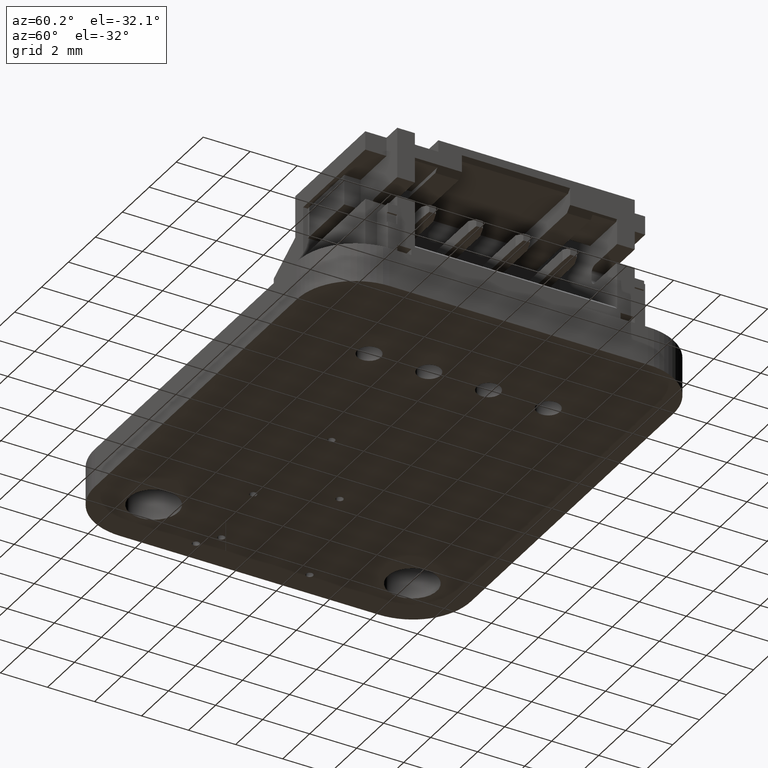
[diagram: clean part render]
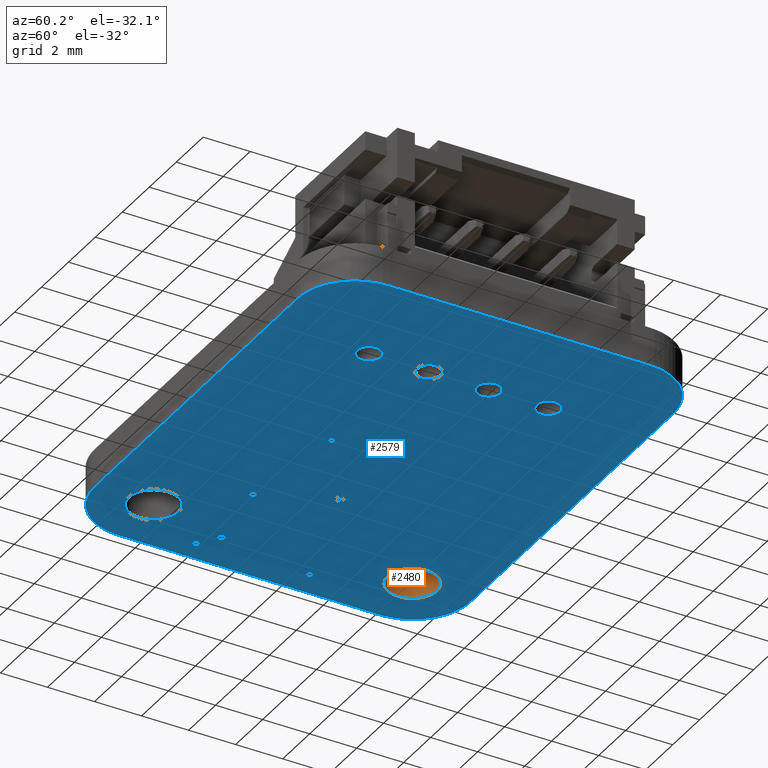
[diagram: same view with the hole feature highlighted: cylindrical wall and planar end face, labeled with their STEP entity ids]
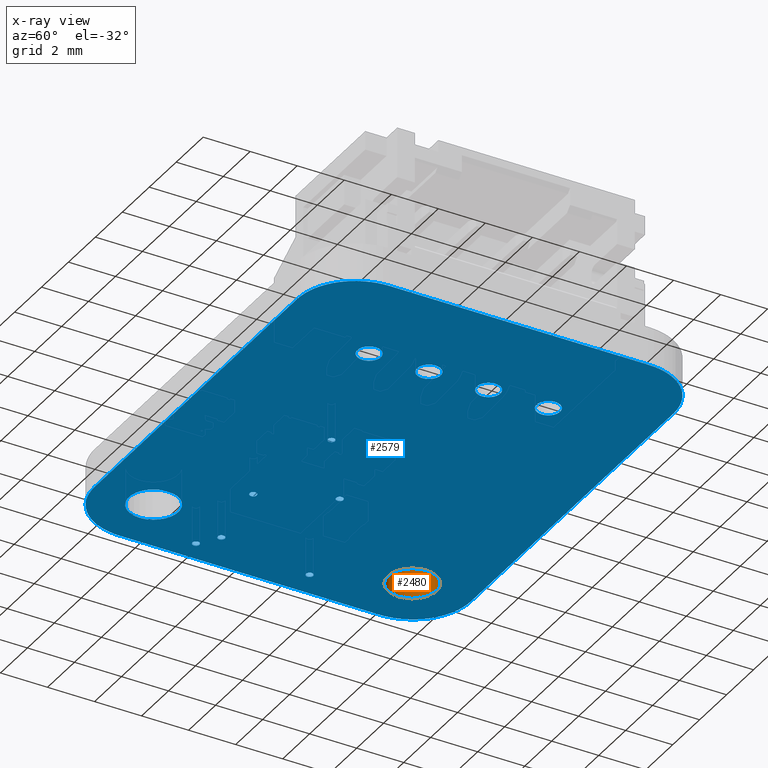
[diagram: x-ray of the same camera — body ghosted, the hole faces saturated]
A machine part, auxiliary view. The highlighted faces form one hole feature of diameter 2.1 mm: the cylindrical wall (entity #2480, orange) and its adjacent planar end face (entity #2579, blue) — they share a circular edge in the B-rep.
The next image is the same camera in x-ray (body ghosted, the hole faces saturated) — the bore reads through the body.
Wall:
#2480 = ADVANCED_FACE('',(#2481),#2508,.F.);
#2481 = FACE_BOUND('',#2482,.T.);
#2482 = EDGE_LOOP('',(#2483,#2493,#2500,#2501));
#2483 = ORIENTED_EDGE('',*,*,#2484,.T.);
#2484 = EDGE_CURVE('',#2485,#2487,#2489,.T.);
#2485 = VERTEX_POINT('',#2486);
#2486 = CARTESIAN_POINT('',(3.55,-2.5,-0.82));
#2487 = VERTEX_POINT('',#2488);
#2488 = CARTESIAN_POINT('',(3.55,-2.5,0.82));
#2489 = LINE('',#2490,#2491);
#2490 = CARTESIAN_POINT('',(3.55,-2.5,-0.82));
#2491 = VECTOR('',#2492,1.);
#2492 = DIRECTION('',(0.,0.,1.));
#2493 = ORIENTED_EDGE('',*,*,#2494,.T.);
#2494 = EDGE_CURVE('',#2487,#2487,#2495,.T.);
#2495 = CIRCLE('',#2496,1.05);
#2496 = AXIS2_PLACEMENT_3D('',#2497,#2498,#2499);
#2497 = CARTESIAN_POINT('',(2.5,-2.5,0.82));
#2498 = DIRECTION('',(0.,0.,1.));
#2499 = DIRECTION('',(1.,0.,-0.));
#2500 = ORIENTED_EDGE('',*,*,#2484,.F.);
#2501 = ORIENTED_EDGE('',*,*,#2502,.F.);
#2502 = EDGE_CURVE('',#2485,#2485,#2503,.T.);
#2503 = CIRCLE('',#2504,1.05);
#2504 = AXIS2_PLACEMENT_3D('',#2505,#2506,#2507);
#2505 = CARTESIAN_POINT('',(2.5,-2.5,-0.82));
#2506 = DIRECTION('',(0.,0.,1.));
#2507 = DIRECTION('',(1.,0.,-0.));
#2508 = CYLINDRICAL_SURFACE('',#2509,1.05);
#2509 = AXIS2_PLACEMENT_3D('',#2510,#2511,#2512);
#2510 = CARTESIAN_POINT('',(2.5,-2.5,-0.82));
#2511 = DIRECTION('',(-0.,-0.,-1.));
#2512 = DIRECTION('',(1.,0.,-0.));
End face:
#80 = VERTEX_POINT('',#81);
#81 = CARTESIAN_POINT('',(17.5,0.,-0.82));
#98 = VERTEX_POINT('',#99);
#99 = CARTESIAN_POINT('',(2.5,0.,-0.82));
#105 = EDGE_CURVE('',#80,#98,#106,.T.);
#106 = LINE('',#107,#108);
#107 = CARTESIAN_POINT('',(17.5,0.,-0.82));
#108 = VECTOR('',#109,1.);
#109 = DIRECTION('',(-1.,0.,0.));
#120 = VERTEX_POINT('',#121);
#121 = CARTESIAN_POINT('',(17.75982,-1.263E-02,-0.82));
#136 = EDGE_CURVE('',#120,#80,#137,.T.);
#137 = LINE('',#138,#139);
#138 = CARTESIAN_POINT('',(17.75982,-1.263E-02,-0.82));
#139 = VECTOR('',#140,1.);
#140 = DIRECTION('',(-0.998820595701,4.855324503005E-02,0.));
#160 = VERTEX_POINT('',#161);
#161 = CARTESIAN_POINT('',(2.24018,-1.263E-02,-0.82));
#167 = EDGE_CURVE('',#98,#160,#168,.T.);
#168 = LINE('',#169,#170);
#169 = CARTESIAN_POINT('',(2.5,0.,-0.82));
#170 = VECTOR('',#171,1.);
#171 = DIRECTION('',(-0.998820595701,-4.855324503005E-02,0.));
#182 = VERTEX_POINT('',#183);
#183 = CARTESIAN_POINT('',(18.01117,-4.974E-02,-0.82));
#198 = EDGE_CURVE('',#182,#120,#199,.T.);
#199 = LINE('',#200,#201);
#200 = CARTESIAN_POINT('',(18.01117,-4.974E-02,-0.82));
#201 = VECTOR('',#202,1.);
#202 = DIRECTION('',(-0.989275824391,0.146059382706,0.));
#222 = VERTEX_POINT('',#223);
#223 = CARTESIAN_POINT('',(1.98883,-4.974E-02,-0.82));
#229 = EDGE_CURVE('',#160,#222,#230,.T.);
#230 = LINE('',#231,#232);
#231 = CARTESIAN_POINT('',(2.24018,-1.263E-02,-0.82));
#232 = VECTOR('',#233,1.);
#233 = DIRECTION('',(-0.989275824391,-0.146059382706,0.));
#244 = VERTEX_POINT('',#245);
#245 = CARTESIAN_POINT('',(18.25291,-0.11021,-0.82));
#260 = EDGE_CURVE('',#244,#182,#261,.T.);
#261 = LINE('',#262,#263);
#262 = CARTESIAN_POINT('',(18.25291,-0.11021,-0.82));
#263 = VECTOR('',#264,1.);
#264 = DIRECTION('',(-0.970109442671,0.242667816656,0.));
#284 = VERTEX_POINT('',#285);
#285 = CARTESIAN_POINT('',(1.74709,-0.11021,-0.82));
#291 = EDGE_CURVE('',#222,#284,#292,.T.);
#292 = LINE('',#293,#294);
#293 = CARTESIAN_POINT('',(1.98883,-4.974E-02,-0.82));
#294 = VECTOR('',#295,1.);
#295 = DIRECTION('',(-0.970109442671,-0.242667816656,0.));
#306 = VERTEX_POINT('',#307);
#307 = CARTESIAN_POINT('',(18.48389,-0.19287,-0.82));
#322 = EDGE_CURVE('',#306,#244,#323,.T.);
#323 = LINE('',#324,#325);
#324 = CARTESIAN_POINT('',(18.48389,-0.19287,-0.82));
#325 = VECTOR('',#326,1.);
#326 = DIRECTION('',(-0.941525917724,0.336940567837,0.));
#346 = VERTEX_POINT('',#347);
#347 = CARTESIAN_POINT('',(1.51611,-0.19287,-0.82));
#353 = EDGE_CURVE('',#284,#346,#354,.T.);
#354 = LINE('',#355,#356);
#355 = CARTESIAN_POINT('',(1.74709,-0.11021,-0.82));
#356 = VECTOR('',#357,1.);
#357 = DIRECTION('',(-0.941525917724,-0.336940567837,0.));
#368 = VERTEX_POINT('',#369);
#369 = CARTESIAN_POINT('',(18.70297,-0.29659,-0.82));
#384 = EDGE_CURVE('',#368,#306,#385,.T.);
#385 = LINE('',#386,#387);
#386 = CARTESIAN_POINT('',(18.70297,-0.29659,-0.82));
#387 = VECTOR('',#388,1.);
#388 = DIRECTION('',(-0.903825184632,0.427901899534,0.));
#408 = VERTEX_POINT('',#409);
#409 = CARTESIAN_POINT('',(1.29703,-0.29659,-0.82));
#415 = EDGE_CURVE('',#346,#408,#416,.T.);
#416 = LINE('',#417,#418);
#417 = CARTESIAN_POINT('',(1.51611,-0.19287,-0.82));
#418 = VECTOR('',#419,1.);
#419 = DIRECTION('',(-0.903825184632,-0.427901899534,0.));
#430 = VERTEX_POINT('',#431);
#431 = CARTESIAN_POINT('',(18.909,-0.42023,-0.82));
#446 = EDGE_CURVE('',#430,#368,#447,.T.);
#447 = LINE('',#448,#449);
#448 = CARTESIAN_POINT('',(18.909,-0.42023,-0.82));
#449 = VECTOR('',#450,1.);
#450 = DIRECTION('',(-0.857452529276,0.514563076832,0.));
#470 = VERTEX_POINT('',#471);
#471 = CARTESIAN_POINT('',(1.091,-0.42023,-0.82));
#477 = EDGE_CURVE('',#408,#470,#478,.T.);
#478 = LINE('',#479,#480);
#479 = CARTESIAN_POINT('',(1.29703,-0.29659,-0.82));
#480 = VECTOR('',#481,1.);
#481 = DIRECTION('',(-0.857452529276,-0.514563076832,0.));
#492 = VERTEX_POINT('',#493);
#493 = CARTESIAN_POINT('',(19.10084,-0.56263,-0.82));
#508 = EDGE_CURVE('',#492,#430,#509,.T.);
#509 = LINE('',#510,#511);
#510 = CARTESIAN_POINT('',(19.10084,-0.56263,-0.82));
#511 = VECTOR('',#512,1.);
#512 = DIRECTION('',(-0.802963619462,0.596028041136,0.));
#532 = VERTEX_POINT('',#533);
#533 = CARTESIAN_POINT('',(0.89916,-0.56263,-0.82));
#539 = EDGE_CURVE('',#470,#532,#540,.T.);
#540 = LINE('',#541,#542);
#541 = CARTESIAN_POINT('',(1.091,-0.42023,-0.82));
#542 = VECTOR('',#543,1.);
#543 = DIRECTION('',(-0.802963619462,-0.596028041136,0.));
#554 = VERTEX_POINT('',#555);
#555 = CARTESIAN_POINT('',(19.27734,-0.72266,-0.82));
#570 = EDGE_CURVE('',#554,#492,#571,.T.);
#571 = LINE('',#572,#573);
#572 = CARTESIAN_POINT('',(19.27734,-0.72266,-0.82));
#573 = VECTOR('',#574,1.);
#574 = DIRECTION('',(-0.740826374458,0.671696570564,0.));
#594 = VERTEX_POINT('',#595);
#595 = CARTESIAN_POINT('',(0.72266,-0.72266,-0.82));
#601 = EDGE_CURVE('',#532,#594,#602,.T.);
#602 = LINE('',#603,#604);
#603 = CARTESIAN_POINT('',(0.89916,-0.56263,-0.82));
#604 = VECTOR('',#605,1.);
#605 = DIRECTION('',(-0.740826374458,-0.671696570564,0.));
#616 = VERTEX_POINT('',#617);
#617 = CARTESIAN_POINT('',(19.43737,-0.89916,-0.82));
#632 = EDGE_CURVE('',#616,#554,#633,.T.);
#633 = LINE('',#634,#635);
#634 = CARTESIAN_POINT('',(19.43737,-0.89916,-0.82));
#635 = VECTOR('',#636,1.);
#636 = DIRECTION('',(-0.671696570564,0.740826374458,0.));
#656 = VERTEX_POINT('',#657);
#657 = CARTESIAN_POINT('',(0.56263,-0.89916,-0.82));
#663 = EDGE_CURVE('',#594,#656,#664,.T.);
#664 = LINE('',#665,#666);
#665 = CARTESIAN_POINT('',(0.72266,-0.72266,-0.82));
#666 = VECTOR('',#667,1.);
#667 = DIRECTION('',(-0.671696570564,-0.740826374458,0.));
#678 = VERTEX_POINT('',#679);
#679 = CARTESIAN_POINT('',(19.57977,-1.091,-0.82));
#694 = EDGE_CURVE('',#678,#616,#695,.T.);
#695 = LINE('',#696,#697);
#696 = CARTESIAN_POINT('',(19.57977,-1.091,-0.82));
#697 = VECTOR('',#698,1.);
#698 = DIRECTION('',(-0.596028041136,0.802963619462,0.));
#718 = VERTEX_POINT('',#719);
#719 = CARTESIAN_POINT('',(0.42023,-1.091,-0.82));
#725 = EDGE_CURVE('',#656,#718,#726,.T.);
#726 = LINE('',#727,#728);
#727 = CARTESIAN_POINT('',(0.56263,-0.89916,-0.82));
#728 = VECTOR('',#729,1.);
#729 = DIRECTION('',(-0.596028041136,-0.802963619462,0.));
#740 = VERTEX_POINT('',#741);
#741 = CARTESIAN_POINT('',(19.70341,-1.29704,-0.82));
#756 = EDGE_CURVE('',#740,#678,#757,.T.);
#757 = LINE('',#758,#759);
#758 = CARTESIAN_POINT('',(19.70341,-1.29704,-0.82));
#759 = VECTOR('',#760,1.);
#760 = DIRECTION('',(-0.514544715016,0.857463548058,0.));
#780 = VERTEX_POINT('',#781);
#781 = CARTESIAN_POINT('',(0.29659,-1.29704,-0.82));
#787 = EDGE_CURVE('',#718,#780,#788,.T.);
#788 = LINE('',#789,#790);
#789 = CARTESIAN_POINT('',(0.42023,-1.091,-0.82));
#790 = VECTOR('',#791,1.);
#791 = DIRECTION('',(-0.514544715016,-0.857463548058,0.));
#802 = VERTEX_POINT('',#803);
#803 = CARTESIAN_POINT('',(19.80713,-1.51611,-0.82));
#818 = EDGE_CURVE('',#802,#740,#819,.T.);
#819 = LINE('',#820,#821);
#820 = CARTESIAN_POINT('',(19.80713,-1.51611,-0.82));
#821 = VECTOR('',#822,1.);
#822 = DIRECTION('',(-0.427917855561,0.903817630328,0.));
#842 = VERTEX_POINT('',#843);
#843 = CARTESIAN_POINT('',(0.19287,-1.51611,-0.82));
#849 = EDGE_CURVE('',#780,#842,#850,.T.);
#850 = LINE('',#851,#852);
#851 = CARTESIAN_POINT('',(0.29659,-1.29704,-0.82));
#852 = VECTOR('',#853,1.);
#853 = DIRECTION('',(-0.427917855561,-0.903817630328,0.));
#864 = VERTEX_POINT('',#865);
#865 = CARTESIAN_POINT('',(19.88979,-1.74709,-0.82));
#880 = EDGE_CURVE('',#864,#802,#881,.T.);
#881 = LINE('',#882,#883);
#882 = CARTESIAN_POINT('',(19.88979,-1.74709,-0.82));
#883 = VECTOR('',#884,1.);
#884 = DIRECTION('',(-0.336940567837,0.941525917724,0.));
#904 = VERTEX_POINT('',#905);
#905 = CARTESIAN_POINT('',(0.11021,-1.74709,-0.82));
#911 = EDGE_CURVE('',#842,#904,#912,.T.);
#912 = LINE('',#913,#914);
#913 = CARTESIAN_POINT('',(0.19287,-1.51611,-0.82));
#914 = VECTOR('',#915,1.);
#915 = DIRECTION('',(-0.336940567837,-0.941525917724,0.));
#926 = VERTEX_POINT('',#927);
#927 = CARTESIAN_POINT('',(19.95026,-1.98883,-0.82));
#942 = EDGE_CURVE('',#926,#864,#943,.T.);
#943 = LINE('',#944,#945);
#944 = CARTESIAN_POINT('',(19.95026,-1.98883,-0.82));
#945 = VECTOR('',#946,1.);
#946 = DIRECTION('',(-0.242667816656,0.970109442671,0.));
#966 = VERTEX_POINT('',#967);
#967 = CARTESIAN_POINT('',(4.974E-02,-1.98883,-0.82));
#973 = EDGE_CURVE('',#904,#966,#974,.T.);
#974 = LINE('',#975,#976);
#975 = CARTESIAN_POINT('',(0.11021,-1.74709,-0.82));
#976 = VECTOR('',#977,1.);
#977 = DIRECTION('',(-0.242667816656,-0.970109442671,0.));
#988 = VERTEX_POINT('',#989);
#989 = CARTESIAN_POINT('',(19.98737,-2.24018,-0.82));
#1004 = EDGE_CURVE('',#988,#926,#1005,.T.);
#1005 = LINE('',#1006,#1007);
#1006 = CARTESIAN_POINT('',(19.98737,-2.24018,-0.82));
#1007 = VECTOR('',#1008,1.);
#1008 = DIRECTION('',(-0.146059382706,0.989275824391,0.));
#1028 = VERTEX_POINT('',#1029);
#1029 = CARTESIAN_POINT('',(1.263E-02,-2.24018,-0.82));
#1035 = EDGE_CURVE('',#966,#1028,#1036,.T.);
#1036 = LINE('',#1037,#1038);
#1037 = CARTESIAN_POINT('',(4.974E-02,-1.98883,-0.82));
#1038 = VECTOR('',#1039,1.);
#1039 = DIRECTION('',(-0.146059382706,-0.989275824391,0.));
#1050 = VERTEX_POINT('',#1051);
#1051 = CARTESIAN_POINT('',(20.,-2.5,-0.82));
#1066 = EDGE_CURVE('',#1050,#988,#1067,.T.);
#1067 = LINE('',#1068,#1069);
#1068 = CARTESIAN_POINT('',(20.,-2.5,-0.82));
#1069 = VECTOR('',#1070,1.);
#1070 = DIRECTION('',(-4.855324503004E-02,0.998820595701,0.));
#1090 = VERTEX_POINT('',#1091);
#1091 = CARTESIAN_POINT('',(0.,-2.5,-0.82));
#1097 = EDGE_CURVE('',#1028,#1090,#1098,.T.);
#1098 = LINE('',#1099,#1100);
#1099 = CARTESIAN_POINT('',(1.263E-02,-2.24018,-0.82));
#1100 = VECTOR('',#1101,1.);
#1101 = DIRECTION('',(-4.855324503005E-02,-0.998820595701,0.));
#1112 = VERTEX_POINT('',#1113);
#1113 = CARTESIAN_POINT('',(20.,-13.5,-0.82));
#1128 = EDGE_CURVE('',#1112,#1050,#1129,.T.);
#1129 = LINE('',#1130,#1131);
#1130 = CARTESIAN_POINT('',(20.,-13.5,-0.82));
#1131 = VECTOR('',#1132,1.);
#1132 = DIRECTION('',(0.,1.,0.));
#1152 = VERTEX_POINT('',#1153);
#1153 = CARTESIAN_POINT('',(0.,-13.5,-0.82));
#1159 = EDGE_CURVE('',#1090,#1152,#1160,.T.);
#1160 = LINE('',#1161,#1162);
#1161 = CARTESIAN_POINT('',(0.,-2.5,-0.82));
#1162 = VECTOR('',#1163,1.);
#1163 = DIRECTION('',(0.,-1.,0.));
#1174 = VERTEX_POINT('',#1175);
#1175 = CARTESIAN_POINT('',(19.98737,-13.75982,-0.82));
#1190 = EDGE_CURVE('',#1174,#1112,#1191,.T.);
#1191 = LINE('',#1192,#1193);
#1192 = CARTESIAN_POINT('',(19.98737,-13.75982,-0.82));
#1193 = VECTOR('',#1194,1.);
#1194 = DIRECTION('',(4.855324503004E-02,0.998820595701,0.));
#1214 = VERTEX_POINT('',#1215);
#1215 = CARTESIAN_POINT('',(1.263E-02,-13.75982,-0.82));
#1221 = EDGE_CURVE('',#1152,#1214,#1222,.T.);
#1222 = LINE('',#1223,#1224);
#1223 = CARTESIAN_POINT('',(0.,-13.5,-0.82));
#1224 = VECTOR('',#1225,1.);
#1225 = DIRECTION('',(4.855324503005E-02,-0.998820595701,0.));
#1236 = VERTEX_POINT('',#1237);
#1237 = CARTESIAN_POINT('',(19.95026,-14.01117,-0.82));
#1252 = EDGE_CURVE('',#1236,#1174,#1253,.T.);
#1253 = LINE('',#1254,#1255);
#1254 = CARTESIAN_POINT('',(19.95026,-14.01117,-0.82));
#1255 = VECTOR('',#1256,1.);
#1256 = DIRECTION('',(0.146059382706,0.989275824391,0.));
#1276 = VERTEX_POINT('',#1277);
#1277 = CARTESIAN_POINT('',(4.974E-02,-14.01117,-0.82));
#1283 = EDGE_CURVE('',#1214,#1276,#1284,.T.);
#1284 = LINE('',#1285,#1286);
#1285 = CARTESIAN_POINT('',(1.263E-02,-13.75982,-0.82));
#1286 = VECTOR('',#1287,1.);
#1287 = DIRECTION('',(0.146059382706,-0.989275824391,0.));
#1298 = VERTEX_POINT('',#1299);
#1299 = CARTESIAN_POINT('',(19.88979,-14.25291,-0.82));
#1314 = EDGE_CURVE('',#1298,#1236,#1315,.T.);
#1315 = LINE('',#1316,#1317);
#1316 = CARTESIAN_POINT('',(19.88979,-14.25291,-0.82));
#1317 = VECTOR('',#1318,1.);
#1318 = DIRECTION('',(0.242667816656,0.970109442671,0.));
#1338 = VERTEX_POINT('',#1339);
#1339 = CARTESIAN_POINT('',(0.11021,-14.25291,-0.82));
#1345 = EDGE_CURVE('',#1276,#1338,#1346,.T.);
#1346 = LINE('',#1347,#1348);
#1347 = CARTESIAN_POINT('',(4.974E-02,-14.01117,-0.82));
#1348 = VECTOR('',#1349,1.);
#1349 = DIRECTION('',(0.242667816656,-0.970109442671,0.));
#1360 = VERTEX_POINT('',#1361);
#1361 = CARTESIAN_POINT('',(19.80713,-14.48389,-0.82));
#1376 = EDGE_CURVE('',#1360,#1298,#1377,.T.);
#1377 = LINE('',#1378,#1379);
#1378 = CARTESIAN_POINT('',(19.80713,-14.48389,-0.82));
#1379 = VECTOR('',#1380,1.);
#1380 = DIRECTION('',(0.336940567837,0.941525917724,0.));
#1400 = VERTEX_POINT('',#1401);
#1401 = CARTESIAN_POINT('',(0.19287,-14.48389,-0.82));
#1407 = EDGE_CURVE('',#1338,#1400,#1408,.T.);
#1408 = LINE('',#1409,#1410);
#1409 = CARTESIAN_POINT('',(0.11021,-14.25291,-0.82));
#1410 = VECTOR('',#1411,1.);
#1411 = DIRECTION('',(0.336940567837,-0.941525917724,0.));
#1422 = VERTEX_POINT('',#1423);
#1423 = CARTESIAN_POINT('',(19.70341,-14.70296,-0.82));
#1438 = EDGE_CURVE('',#1422,#1360,#1439,.T.);
#1439 = LINE('',#1440,#1441);
#1440 = CARTESIAN_POINT('',(19.70341,-14.70296,-0.82));
#1441 = VECTOR('',#1442,1.);
#1442 = DIRECTION('',(0.427917855561,0.903817630328,0.));
#1462 = VERTEX_POINT('',#1463);
#1463 = CARTESIAN_POINT('',(0.29659,-14.70296,-0.82));
#1469 = EDGE_CURVE('',#1400,#1462,#1470,.T.);
#1470 = LINE('',#1471,#1472);
#1471 = CARTESIAN_POINT('',(0.19287,-14.48389,-0.82));
#1472 = VECTOR('',#1473,1.);
#1473 = DIRECTION('',(0.427917855561,-0.903817630328,0.));
#1484 = VERTEX_POINT('',#1485);
#1485 = CARTESIAN_POINT('',(19.57977,-14.909,-0.82));
#1500 = EDGE_CURVE('',#1484,#1422,#1501,.T.);
#1501 = LINE('',#1502,#1503);
#1502 = CARTESIAN_POINT('',(19.57977,-14.909,-0.82));
#1503 = VECTOR('',#1504,1.);
#1504 = DIRECTION('',(0.514544715016,0.857463548058,0.));
#1524 = VERTEX_POINT('',#1525);
#1525 = CARTESIAN_POINT('',(0.42023,-14.909,-0.82));
#1531 = EDGE_CURVE('',#1462,#1524,#1532,.T.);
#1532 = LINE('',#1533,#1534);
#1533 = CARTESIAN_POINT('',(0.29659,-14.70296,-0.82));
#1534 = VECTOR('',#1535,1.);
#1535 = DIRECTION('',(0.514544715016,-0.857463548058,0.));
#1546 = VERTEX_POINT('',#1547);
#1547 = CARTESIAN_POINT('',(19.43737,-15.10084,-0.82));
#1562 = EDGE_CURVE('',#1546,#1484,#1563,.T.);
#1563 = LINE('',#1564,#1565);
#1564 = CARTESIAN_POINT('',(19.43737,-15.10084,-0.82));
#1565 = VECTOR('',#1566,1.);
#1566 = DIRECTION('',(0.596028041136,0.802963619462,0.));
#1586 = VERTEX_POINT('',#1587);
#1587 = CARTESIAN_POINT('',(0.56263,-15.10084,-0.82));
#1593 = EDGE_CURVE('',#1524,#1586,#1594,.T.);
#1594 = LINE('',#1595,#1596);
#1595 = CARTESIAN_POINT('',(0.42023,-14.909,-0.82));
#1596 = VECTOR('',#1597,1.);
#1597 = DIRECTION('',(0.596028041136,-0.802963619462,0.));
#1608 = VERTEX_POINT('',#1609);
#1609 = CARTESIAN_POINT('',(19.27734,-15.27734,-0.82));
#1624 = EDGE_CURVE('',#1608,#1546,#1625,.T.);
#1625 = LINE('',#1626,#1627);
#1626 = CARTESIAN_POINT('',(19.27734,-15.27734,-0.82));
#1627 = VECTOR('',#1628,1.);
#1628 = DIRECTION('',(0.671696570564,0.740826374458,0.));
#1648 = VERTEX_POINT('',#1649);
#1649 = CARTESIAN_POINT('',(0.72266,-15.27734,-0.82));
#1655 = EDGE_CURVE('',#1586,#1648,#1656,.T.);
#1656 = LINE('',#1657,#1658);
#1657 = CARTESIAN_POINT('',(0.56263,-15.10084,-0.82));
#1658 = VECTOR('',#1659,1.);
#1659 = DIRECTION('',(0.671696570564,-0.740826374458,0.));
#1670 = VERTEX_POINT('',#1671);
#1671 = CARTESIAN_POINT('',(19.10084,-15.43737,-0.82));
#1686 = EDGE_CURVE('',#1670,#1608,#1687,.T.);
#1687 = LINE('',#1688,#1689);
#1688 = CARTESIAN_POINT('',(19.10084,-15.43737,-0.82));
#1689 = VECTOR('',#1690,1.);
#1690 = DIRECTION('',(0.740826374458,0.671696570564,0.));
#1710 = VERTEX_POINT('',#1711);
#1711 = CARTESIAN_POINT('',(0.89916,-15.43737,-0.82));
#1717 = EDGE_CURVE('',#1648,#1710,#1718,.T.);
#1718 = LINE('',#1719,#1720);
#1719 = CARTESIAN_POINT('',(0.72266,-15.27734,-0.82));
#1720 = VECTOR('',#1721,1.);
#1721 = DIRECTION('',(0.740826374458,-0.671696570564,0.));
#1732 = VERTEX_POINT('',#1733);
#1733 = CARTESIAN_POINT('',(18.909,-15.57977,-0.82));
#1748 = EDGE_CURVE('',#1732,#1670,#1749,.T.);
#1749 = LINE('',#1750,#1751);
#1750 = CARTESIAN_POINT('',(18.909,-15.57977,-0.82));
#1751 = VECTOR('',#1752,1.);
#1752 = DIRECTION('',(0.802963619462,0.596028041136,0.));
#1772 = VERTEX_POINT('',#1773);
#1773 = CARTESIAN_POINT('',(1.091,-15.57977,-0.82));
#1779 = EDGE_CURVE('',#1710,#1772,#1780,.T.);
#1780 = LINE('',#1781,#1782);
#1781 = CARTESIAN_POINT('',(0.89916,-15.43737,-0.82));
#1782 = VECTOR('',#1783,1.);
#1783 = DIRECTION('',(0.802963619462,-0.596028041136,0.));
#1794 = VERTEX_POINT('',#1795);
#1795 = CARTESIAN_POINT('',(18.70297,-15.70341,-0.82));
#1810 = EDGE_CURVE('',#1794,#1732,#1811,.T.);
#1811 = LINE('',#1812,#1813);
#1812 = CARTESIAN_POINT('',(18.70297,-15.70341,-0.82));
#1813 = VECTOR('',#1814,1.);
#1814 = DIRECTION('',(0.857452529276,0.514563076832,0.));
#1834 = VERTEX_POINT('',#1835);
#1835 = CARTESIAN_POINT('',(1.29703,-15.70341,-0.82));
#1841 = EDGE_CURVE('',#1772,#1834,#1842,.T.);
#1842 = LINE('',#1843,#1844);
#1843 = CARTESIAN_POINT('',(1.091,-15.57977,-0.82));
#1844 = VECTOR('',#1845,1.);
#1845 = DIRECTION('',(0.857452529276,-0.514563076832,0.));
#1856 = VERTEX_POINT('',#1857);
#1857 = CARTESIAN_POINT('',(18.48389,-15.80713,-0.82));
#1872 = EDGE_CURVE('',#1856,#1794,#1873,.T.);
#1873 = LINE('',#1874,#1875);
#1874 = CARTESIAN_POINT('',(18.48389,-15.80713,-0.82));
#1875 = VECTOR('',#1876,1.);
#1876 = DIRECTION('',(0.903825184632,0.427901899534,0.));
#1896 = VERTEX_POINT('',#1897);
#1897 = CARTESIAN_POINT('',(1.51611,-15.80713,-0.82));
#1903 = EDGE_CURVE('',#1834,#1896,#1904,.T.);
#1904 = LINE('',#1905,#1906);
#1905 = CARTESIAN_POINT('',(1.29703,-15.70341,-0.82));
#1906 = VECTOR('',#1907,1.);
#1907 = DIRECTION('',(0.903825184632,-0.427901899534,0.));
#1918 = VERTEX_POINT('',#1919);
#1919 = CARTESIAN_POINT('',(18.25291,-15.88979,-0.82));
#1934 = EDGE_CURVE('',#1918,#1856,#1935,.T.);
#1935 = LINE('',#1936,#1937);
#1936 = CARTESIAN_POINT('',(18.25291,-15.88979,-0.82));
#1937 = VECTOR('',#1938,1.);
#1938 = DIRECTION('',(0.941525917724,0.336940567837,0.));
#1958 = VERTEX_POINT('',#1959);
#1959 = CARTESIAN_POINT('',(1.74709,-15.88979,-0.82));
#1965 = EDGE_CURVE('',#1896,#1958,#1966,.T.);
#1966 = LINE('',#1967,#1968);
#1967 = CARTESIAN_POINT('',(1.51611,-15.80713,-0.82));
#1968 = VECTOR('',#1969,1.);
#1969 = DIRECTION('',(0.941525917724,-0.336940567837,0.));
#1980 = VERTEX_POINT('',#1981);
#1981 = CARTESIAN_POINT('',(18.01117,-15.95026,-0.82));
#1996 = EDGE_CURVE('',#1980,#1918,#1997,.T.);
#1997 = LINE('',#1998,#1999);
#1998 = CARTESIAN_POINT('',(18.01117,-15.95026,-0.82));
#1999 = VECTOR('',#2000,1.);
#2000 = DIRECTION('',(0.970109442671,0.242667816656,0.));
#2020 = VERTEX_POINT('',#2021);
#2021 = CARTESIAN_POINT('',(1.98883,-15.95026,-0.82));
#2027 = EDGE_CURVE('',#1958,#2020,#2028,.T.);
#2028 = LINE('',#2029,#2030);
#2029 = CARTESIAN_POINT('',(1.74709,-15.88979,-0.82));
#2030 = VECTOR('',#2031,1.);
#2031 = DIRECTION('',(0.970109442671,-0.242667816656,0.));
#2042 = VERTEX_POINT('',#2043);
#2043 = CARTESIAN_POINT('',(17.75982,-15.98737,-0.82));
#2058 = EDGE_CURVE('',#2042,#1980,#2059,.T.);
#2059 = LINE('',#2060,#2061);
#2060 = CARTESIAN_POINT('',(17.75982,-15.98737,-0.82));
#2061 = VECTOR('',#2062,1.);
#2062 = DIRECTION('',(0.989275824391,0.146059382706,0.));
#2082 = VERTEX_POINT('',#2083);
#2083 = CARTESIAN_POINT('',(2.24018,-15.98737,-0.82));
#2089 = EDGE_CURVE('',#2020,#2082,#2090,.T.);
#2090 = LINE('',#2091,#2092);
#2091 = CARTESIAN_POINT('',(1.98883,-15.95026,-0.82));
#2092 = VECTOR('',#2093,1.);
#2093 = DIRECTION('',(0.989275824391,-0.146059382706,0.));
#2104 = VERTEX_POINT('',#2105);
#2105 = CARTESIAN_POINT('',(17.5,-16.,-0.82));
#2120 = EDGE_CURVE('',#2104,#2042,#2121,.T.);
#2121 = LINE('',#2122,#2123);
#2122 = CARTESIAN_POINT('',(17.5,-16.,-0.82));
#2123 = VECTOR('',#2124,1.);
#2124 = DIRECTION('',(0.998820595701,4.855324503004E-02,0.));
#2144 = VERTEX_POINT('',#2145);
#2145 = CARTESIAN_POINT('',(2.5,-16.,-0.82));
#2151 = EDGE_CURVE('',#2082,#2144,#2152,.T.);
#2152 = LINE('',#2153,#2154);
#2153 = CARTESIAN_POINT('',(2.24018,-15.98737,-0.82));
#2154 = VECTOR('',#2155,1.);
#2155 = DIRECTION('',(0.998820595701,-4.855324503004E-02,0.));
#2173 = EDGE_CURVE('',#2144,#2104,#2174,.T.);
#2174 = LINE('',#2175,#2176);
#2175 = CARTESIAN_POINT('',(2.5,-16.,-0.82));
#2176 = VECTOR('',#2177,1.);
#2177 = DIRECTION('',(1.,0.,0.));
#2188 = VERTEX_POINT('',#2189);
#2189 = CARTESIAN_POINT('',(3.55,-13.5,-0.82));
#2205 = EDGE_CURVE('',#2188,#2188,#2206,.T.);
#2206 = CIRCLE('',#2207,1.05);
#2207 = AXIS2_PLACEMENT_3D('',#2208,#2209,#2210);
#2208 = CARTESIAN_POINT('',(2.5,-13.5,-0.82));
#2209 = DIRECTION('',(0.,0.,1.));
#2210 = DIRECTION('',(1.,0.,-0.));
#2221 = VERTEX_POINT('',#2222);
#2222 = CARTESIAN_POINT('',(1.07779,-10.7998,-0.82));
#2238 = EDGE_CURVE('',#2221,#2221,#2239,.T.);
#2239 = CIRCLE('',#2240,0.15);
#2240 = AXIS2_PLACEMENT_3D('',#2241,#2242,#2243);
#2241 = CARTESIAN_POINT('',(0.92779,-10.7998,-0.82));
#2242 = DIRECTION('',(0.,0.,1.));
#2243 = DIRECTION('',(1.,0.,-0.));
#2254 = VERTEX_POINT('',#2255);
#2255 = CARTESIAN_POINT('',(1.91365,-10.19985,-0.82));
#2271 = EDGE_CURVE('',#2254,#2254,#2272,.T.);
#2272 = CIRCLE('',#2273,0.15);
#2273 = AXIS2_PLACEMENT_3D('',#2274,#2275,#2276);
#2274 = CARTESIAN_POINT('',(1.76365,-10.19985,-0.82));
#2275 = DIRECTION('',(0.,0.,1.));
#2276 = DIRECTION('',(1.,0.,-0.));
#2287 = VERTEX_POINT('',#2288);
#2288 = CARTESIAN_POINT('',(5.103,-10.668,-0.82));
#2304 = EDGE_CURVE('',#2287,#2287,#2305,.T.);
#2305 = CIRCLE('',#2306,0.15);
#2306 = AXIS2_PLACEMENT_3D('',#2307,#2308,#2309);
#2307 = CARTESIAN_POINT('',(4.953,-10.668,-0.82));
#2308 = DIRECTION('',(0.,0.,1.));
#2309 = DIRECTION('',(1.,0.,-0.));
#2320 = VERTEX_POINT('',#2321);
#2321 = CARTESIAN_POINT('',(16.048,-11.81,-0.82));
#2337 = EDGE_CURVE('',#2320,#2320,#2338,.T.);
#2338 = CIRCLE('',#2339,0.5);
#2339 = AXIS2_PLACEMENT_3D('',#2340,#2341,#2342);
#2340 = CARTESIAN_POINT('',(15.548,-11.81,-0.82));
#2341 = DIRECTION('',(0.,0.,1.));
#2342 = DIRECTION('',(1.,0.,-0.));
#2353 = VERTEX_POINT('',#2354);
#2354 = CARTESIAN_POINT('',(9.802,-10.033,-0.82));
#2370 = EDGE_CURVE('',#2353,#2353,#2371,.T.);
#2371 = CIRCLE('',#2372,0.15);
#2372 = AXIS2_PLACEMENT_3D('',#2373,#2374,#2375);
#2373 = CARTESIAN_POINT('',(9.652,-10.033,-0.82));
#2374 = DIRECTION('',(0.,0.,1.));
#2375 = DIRECTION('',(1.,0.,-0.));
#2386 = VERTEX_POINT('',#2387);
#2387 = CARTESIAN_POINT('',(16.048,-9.27,-0.82));
#2403 = EDGE_CURVE('',#2386,#2386,#2404,.T.);
#2404 = CIRCLE('',#2405,0.5);
#2405 = AXIS2_PLACEMENT_3D('',#2406,#2407,#2408);
#2406 = CARTESIAN_POINT('',(15.548,-9.27,-0.82));
#2407 = DIRECTION('',(0.,0.,1.));
#2408 = DIRECTION('',(1.,0.,-0.));
#2419 = VERTEX_POINT('',#2420);
#2420 = CARTESIAN_POINT('',(1.28046,-6.08372,-0.82));
#2436 = EDGE_CURVE('',#2419,#2419,#2437,.T.);
#2437 = CIRCLE('',#2438,0.15);
#2438 = AXIS2_PLACEMENT_3D('',#2439,#2440,#2441);
#2439 = CARTESIAN_POINT('',(1.13046,-6.08372,-0.82));
#2440 = DIRECTION('',(0.,0.,1.));
#2441 = DIRECTION('',(1.,0.,-0.));
#2452 = VERTEX_POINT('',#2453);
#2453 = CARTESIAN_POINT('',(6.40209,-7.7373,-0.82));
#2469 = EDGE_CURVE('',#2452,#2452,#2470,.T.);
#2470 = CIRCLE('',#2471,0.15);
#2471 = AXIS2_PLACEMENT_3D('',#2472,#2473,#2474);
#2472 = CARTESIAN_POINT('',(6.25209,-7.7373,-0.82));
#2473 = DIRECTION('',(0.,0.,1.));
#2474 = DIRECTION('',(1.,0.,-0.));
#2485 = VERTEX_POINT('',#2486);
#2486 = CARTESIAN_POINT('',(3.55,-2.5,-0.82));
#2502 = EDGE_CURVE('',#2485,#2485,#2503,.T.);
#2503 = CIRCLE('',#2504,1.05);
#2504 = AXIS2_PLACEMENT_3D('',#2505,#2506,#2507);
#2505 = CARTESIAN_POINT('',(2.5,-2.5,-0.82));
#2506 = DIRECTION('',(0.,0.,1.));
#2507 = DIRECTION('',(1.,0.,-0.));
#2518 = VERTEX_POINT('',#2519);
#2519 = CARTESIAN_POINT('',(16.048,-6.73,-0.82));
#2535 = EDGE_CURVE('',#2518,#2518,#2536,.T.);
#2536 = CIRCLE('',#2537,0.5);
#2537 = AXIS2_PLACEMENT_3D('',#2538,#2539,#2540);
#2538 = CARTESIAN_POINT('',(15.548,-6.73,-0.82));
#2539 = DIRECTION('',(0.,0.,1.));
#2540 = DIRECTION('',(1.,0.,-0.));
#2551 = VERTEX_POINT('',#2552);
#2552 = CARTESIAN_POINT('',(16.048,-4.19,-0.82));
#2568 = EDGE_CURVE('',#2551,#2551,#2569,.T.);
#2569 = CIRCLE('',#2570,0.5);
#2570 = AXIS2_PLACEMENT_3D('',#2571,#2572,#2573);
#2571 = CARTESIAN_POINT('',(15.548,-4.19,-0.82));
#2572 = DIRECTION('',(0.,0.,1.));
#2573 = DIRECTION('',(1.,0.,-0.));
#2579 = ADVANCED_FACE('',(#2580,#2650,#2653,#2656,#2659,#2662,#2665,
    #2668,#2671,#2674,#2677,#2680,#2683),#2686,.F.);
#2580 = FACE_BOUND('',#2581,.F.);
#2581 = EDGE_LOOP('',(#2582,#2583,#2584,#2585,#2586,#2587,#2588,#2589,
    #2590,#2591,#2592,#2593,#2594,#2595,#2596,#2597,#2598,#2599,#2600,
    #2601,#2602,#2603,#2604,#2605,#2606,#2607,#2608,#2609,#2610,#2611,
    #2612,#2613,#2614,#2615,#2616,#2617,#2618,#2619,#2620,#2621,#2622,
    #2623,#2624,#2625,#2626,#2627,#2628,#2629,#2630,#2631,#2632,#2633,
    #2634,#2635,#2636,#2637,#2638,#2639,#2640,#2641,#2642,#2643,#2644,
    #2645,#2646,#2647,#2648,#2649));
#2582 = ORIENTED_EDGE('',*,*,#105,.T.);
#2583 = ORIENTED_EDGE('',*,*,#167,.T.);
#2584 = ORIENTED_EDGE('',*,*,#229,.T.);
#2585 = ORIENTED_EDGE('',*,*,#291,.T.);
#2586 = ORIENTED_EDGE('',*,*,#353,.T.);
#2587 = ORIENTED_EDGE('',*,*,#415,.T.);
#2588 = ORIENTED_EDGE('',*,*,#477,.T.);
#2589 = ORIENTED_EDGE('',*,*,#539,.T.);
#2590 = ORIENTED_EDGE('',*,*,#601,.T.);
#2591 = ORIENTED_EDGE('',*,*,#663,.T.);
#2592 = ORIENTED_EDGE('',*,*,#725,.T.);
#2593 = ORIENTED_EDGE('',*,*,#787,.T.);
#2594 = ORIENTED_EDGE('',*,*,#849,.T.);
#2595 = ORIENTED_EDGE('',*,*,#911,.T.);
#2596 = ORIENTED_EDGE('',*,*,#973,.T.);
#2597 = ORIENTED_EDGE('',*,*,#1035,.T.);
#2598 = ORIENTED_EDGE('',*,*,#1097,.T.);
#2599 = ORIENTED_EDGE('',*,*,#1159,.T.);
#2600 = ORIENTED_EDGE('',*,*,#1221,.T.);
#2601 = ORIENTED_EDGE('',*,*,#1283,.T.);
#2602 = ORIENTED_EDGE('',*,*,#1345,.T.);
#2603 = ORIENTED_EDGE('',*,*,#1407,.T.);
#2604 = ORIENTED_EDGE('',*,*,#1469,.T.);
#2605 = ORIENTED_EDGE('',*,*,#1531,.T.);
#2606 = ORIENTED_EDGE('',*,*,#1593,.T.);
#2607 = ORIENTED_EDGE('',*,*,#1655,.T.);
#2608 = ORIENTED_EDGE('',*,*,#1717,.T.);
#2609 = ORIENTED_EDGE('',*,*,#1779,.T.);
#2610 = ORIENTED_EDGE('',*,*,#1841,.T.);
#2611 = ORIENTED_EDGE('',*,*,#1903,.T.);
#2612 = ORIENTED_EDGE('',*,*,#1965,.T.);
#2613 = ORIENTED_EDGE('',*,*,#2027,.T.);
#2614 = ORIENTED_EDGE('',*,*,#2089,.T.);
#2615 = ORIENTED_EDGE('',*,*,#2151,.T.);
#2616 = ORIENTED_EDGE('',*,*,#2173,.T.);
#2617 = ORIENTED_EDGE('',*,*,#2120,.T.);
#2618 = ORIENTED_EDGE('',*,*,#2058,.T.);
#2619 = ORIENTED_EDGE('',*,*,#1996,.T.);
#2620 = ORIENTED_EDGE('',*,*,#1934,.T.);
#2621 = ORIENTED_EDGE('',*,*,#1872,.T.);
#2622 = ORIENTED_EDGE('',*,*,#1810,.T.);
#2623 = ORIENTED_EDGE('',*,*,#1748,.T.);
#2624 = ORIENTED_EDGE('',*,*,#1686,.T.);
#2625 = ORIENTED_EDGE('',*,*,#1624,.T.);
#2626 = ORIENTED_EDGE('',*,*,#1562,.T.);
#2627 = ORIENTED_EDGE('',*,*,#1500,.T.);
#2628 = ORIENTED_EDGE('',*,*,#1438,.T.);
#2629 = ORIENTED_EDGE('',*,*,#1376,.T.);
#2630 = ORIENTED_EDGE('',*,*,#1314,.T.);
#2631 = ORIENTED_EDGE('',*,*,#1252,.T.);
#2632 = ORIENTED_EDGE('',*,*,#1190,.T.);
#2633 = ORIENTED_EDGE('',*,*,#1128,.T.);
#2634 = ORIENTED_EDGE('',*,*,#1066,.T.);
#2635 = ORIENTED_EDGE('',*,*,#1004,.T.);
#2636 = ORIENTED_EDGE('',*,*,#942,.T.);
#2637 = ORIENTED_EDGE('',*,*,#880,.T.);
#2638 = ORIENTED_EDGE('',*,*,#818,.T.);
#2639 = ORIENTED_EDGE('',*,*,#756,.T.);
#2640 = ORIENTED_EDGE('',*,*,#694,.T.);
#2641 = ORIENTED_EDGE('',*,*,#632,.T.);
#2642 = ORIENTED_EDGE('',*,*,#570,.T.);
#2643 = ORIENTED_EDGE('',*,*,#508,.T.);
#2644 = ORIENTED_EDGE('',*,*,#446,.T.);
#2645 = ORIENTED_EDGE('',*,*,#384,.T.);
#2646 = ORIENTED_EDGE('',*,*,#322,.T.);
#2647 = ORIENTED_EDGE('',*,*,#260,.T.);
#2648 = ORIENTED_EDGE('',*,*,#198,.T.);
#2649 = ORIENTED_EDGE('',*,*,#136,.T.);
#2650 = FACE_BOUND('',#2651,.F.);
#2651 = EDGE_LOOP('',(#2652));
#2652 = ORIENTED_EDGE('',*,*,#2205,.F.);
#2653 = FACE_BOUND('',#2654,.F.);
#2654 = EDGE_LOOP('',(#2655));
#2655 = ORIENTED_EDGE('',*,*,#2238,.F.);
#2656 = FACE_BOUND('',#2657,.F.);
#2657 = EDGE_LOOP('',(#2658));
#2658 = ORIENTED_EDGE('',*,*,#2271,.F.);
#2659 = FACE_BOUND('',#2660,.F.);
#2660 = EDGE_LOOP('',(#2661));
#2661 = ORIENTED_EDGE('',*,*,#2304,.F.);
#2662 = FACE_BOUND('',#2663,.F.);
#2663 = EDGE_LOOP('',(#2664));
#2664 = ORIENTED_EDGE('',*,*,#2337,.F.);
#2665 = FACE_BOUND('',#2666,.F.);
#2666 = EDGE_LOOP('',(#2667));
#2667 = ORIENTED_EDGE('',*,*,#2370,.F.);
#2668 = FACE_BOUND('',#2669,.F.);
#2669 = EDGE_LOOP('',(#2670));
#2670 = ORIENTED_EDGE('',*,*,#2403,.F.);
#2671 = FACE_BOUND('',#2672,.F.);
#2672 = EDGE_LOOP('',(#2673));
#2673 = ORIENTED_EDGE('',*,*,#2436,.F.);
#2674 = FACE_BOUND('',#2675,.F.);
#2675 = EDGE_LOOP('',(#2676));
#2676 = ORIENTED_EDGE('',*,*,#2469,.F.);
#2677 = FACE_BOUND('',#2678,.F.);
#2678 = EDGE_LOOP('',(#2679));
#2679 = ORIENTED_EDGE('',*,*,#2502,.F.);
#2680 = FACE_BOUND('',#2681,.F.);
#2681 = EDGE_LOOP('',(#2682));
#2682 = ORIENTED_EDGE('',*,*,#2535,.F.);
#2683 = FACE_BOUND('',#2684,.F.);
#2684 = EDGE_LOOP('',(#2685));
#2685 = ORIENTED_EDGE('',*,*,#2568,.F.);
#2686 = PLANE('',#2687);
#2687 = AXIS2_PLACEMENT_3D('',#2688,#2689,#2690);
#2688 = CARTESIAN_POINT('',(10.,-8.,-0.82));
#2689 = DIRECTION('',(0.,0.,1.));
#2690 = DIRECTION('',(1.,0.,-0.));